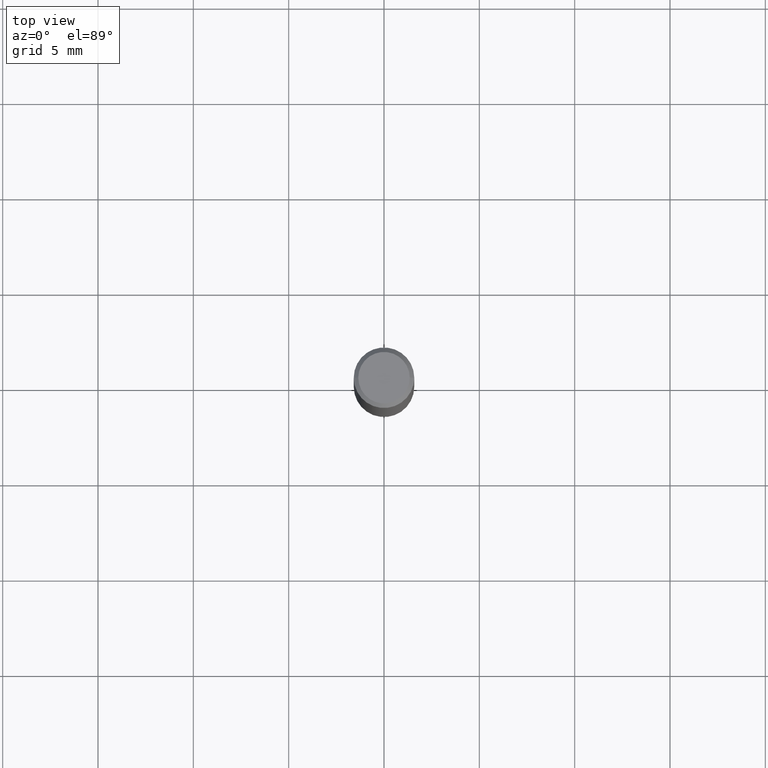
[diagram: clean part render]
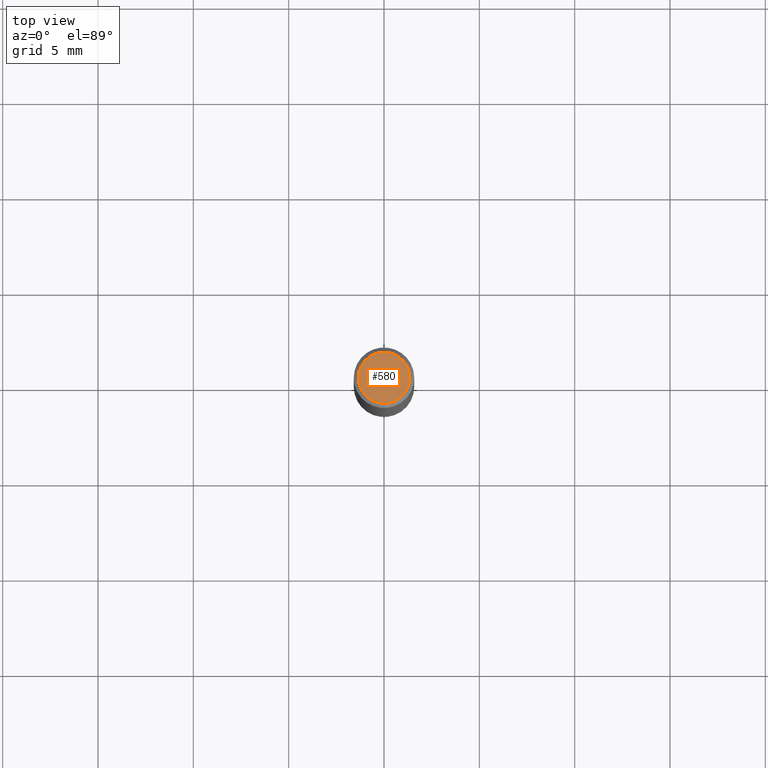
[diagram: same view with one face highlighted and labeled with its STEP entity id]
A machine part, top view. The second image highlights one B-rep face of the part: STEP entity #580.
In plain terms, the highlighted planar face has unit normal (0, -0, -1).
Its self-contained STEP definition (entity closure, byte-faithful):
#8 = EDGE_CURVE ( 'NONE', #571, #187, #199, .T. ) ;
#15 = DIRECTION ( 'NONE',  ( 1.000000000000000000, -6.982962677686266711E-15, 4.875930095424100059E-29 ) ) ;
#43 = DIRECTION ( 'NONE',  ( -2.445468806185136597E-29, 3.491481338843145583E-15, 1.000000000000000000 ) ) ;
#90 = FACE_OUTER_BOUND ( 'NONE', #166, .T. ) ;
#166 = EDGE_LOOP ( 'NONE', ( #391, #308 ) ) ;
#183 = CARTESIAN_POINT ( 'NONE',  ( 7.076796394983739835E-47, -1.010378970665454992E-32, -2.893840386385196200E-18 ) ) ;
#187 = VERTEX_POINT ( 'NONE', #270 ) ;
#199 = CIRCLE ( 'NONE', #220, 0.05312499999999999861 ) ;
#220 = AXIS2_PLACEMENT_3D ( 'NONE', #567, #483, #15 ) ;
#270 = CARTESIAN_POINT ( 'NONE',  ( 0.05312499999999999861, -4.129888592719939842E-16, -5.787680772767651417E-18 ) ) ;
#271 = PLANE ( 'NONE',  #471 ) ;
#275 = CARTESIAN_POINT ( 'NONE',  ( 1.415359278996747967E-46, -2.020757941330909984E-32, -5.787680772770392401E-18 ) ) ;
#276 = DIRECTION ( 'NONE',  ( 2.438088387897960049E-29, -3.491481338843145188E-15, -1.000000000000000000 ) ) ;
#307 = CIRCLE ( 'NONE', #313, 0.05312499999999999861 ) ;
#308 = ORIENTED_EDGE ( 'NONE', *, *, #311, .T. ) ;
#311 = EDGE_CURVE ( 'NONE', #187, #571, #307, .T. ) ;
#313 = AXIS2_PLACEMENT_3D ( 'NONE', #275, #43, #448 ) ;
#322 = CARTESIAN_POINT ( 'NONE',  ( -0.05312499999999999861, 3.873362110279099094E-16, -5.787680772773044021E-18 ) ) ;
#391 = ORIENTED_EDGE ( 'NONE', *, *, #8, .T. ) ;
#448 = DIRECTION ( 'NONE',  ( 1.000000000000000000, -6.982962677686266711E-15, 4.875930095424100059E-29 ) ) ;
#471 = AXIS2_PLACEMENT_3D ( 'NONE', #183, #276, #539 ) ;
#483 = DIRECTION ( 'NONE',  ( -2.445468806185136597E-29, 3.491481338843145583E-15, 1.000000000000000000 ) ) ;
#539 = DIRECTION ( 'NONE',  ( -1.000000000000000000, 6.982962677686265922E-15, -4.876176775795935793E-29 ) ) ;
#567 = CARTESIAN_POINT ( 'NONE',  ( 1.415359278996747967E-46, -2.020757941330909984E-32, -5.787680772770392401E-18 ) ) ;
#571 = VERTEX_POINT ( 'NONE', #322 ) ;
#580 = ADVANCED_FACE ( 'NONE', ( #90 ), #271, .F. ) ;